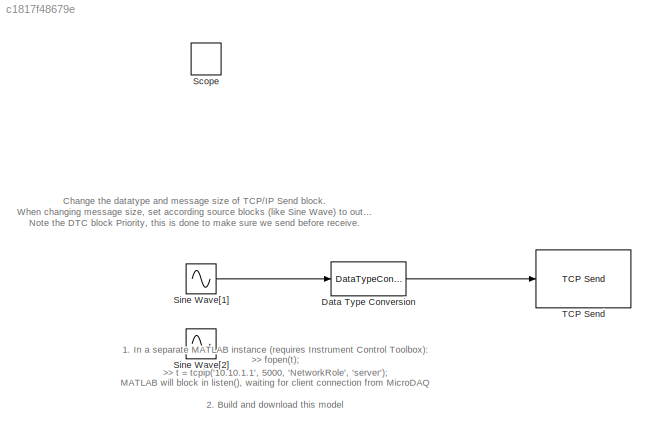
MODEL slx_c1817f48679e
KIND model
BLOCK [DataTypeConversion] Data Type Conversion
  AttributesFormatString = Priority: %<Priority>
  Priority = 1
  RndMeth = Floor
  SaturateOnIntegerOverflow = off
BLOCK [SignalViewerScope] Scope
  DataFormat = StructureWithTime
  Decimation = 1
  Grid = on
  IOType = viewer
  LimitDataPoints = on
  MaxDataPoints = 5000
  NumInputPorts = 1
  Ports = []
  SampleInput = off
  SampleTime = -1
  SaveName = ScopeData1
  SaveToWorkspace = off
  ShowLegends = off
  TickLabels = OneTimeTick
  TimeRange = auto
  YMax = 10
  YMin = -10
  ZoomMode = on
BLOCK [Sin] Sine Wave[1]
  Ports = [0, 1]
BLOCK [Sin] Sine Wave[2]
  Amplitude = [1 2]
  Commented = on
  Ports = [0, 1]
BLOCK [Reference] TCP Send  REF=microdaq_lib/Network/TCP Send  (lib defined in slx_912f07ce28e3)
  Blocking = off
  Datatype = double
  IPAddrStr = '10.10.1.10'
  Port = 5000
  Ports = [1]
  SampleTime = -1
  SizePack = 1
  SourceBlock = microdaq_lib/Network/TCP Send
  SourceType = TCP/IP Send
  Timeout = 250
ANNOTATION (root): 1. In a separate MATLAB instance (requires Instrument Control Toolbox): >> t = tcpip('10.10.1.1', 5000, 'NetworkRole', 'server'); >> fopen(t); MATLAB will block in listen(), waiting for client connection from MicroDAQ 2. Build and download this model 3. In the separate MATLAB (which will accept() client connection and unblock command line by this time): >> data = typecast(swapbytes(uint8(fread(t, ...<+59ch>
ANNOTATION (root): Change the datatype and message size of TCP/IP Send block. When changing message size, set according source blocks (like Sine Wave) to output arrays. Note the DTC block Priority, this is done to make sure we send before receive.
LINE Data Type Conversion:1 -> TCP Send:1
LINE Sine Wave[1]:1 -> Data Type Conversion:1
